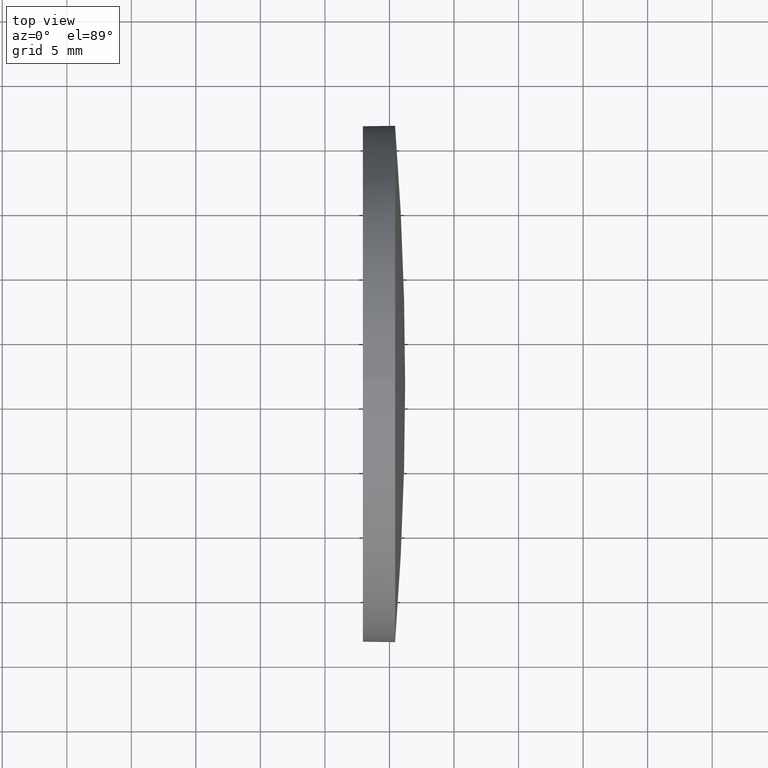
[diagram: clean part render]
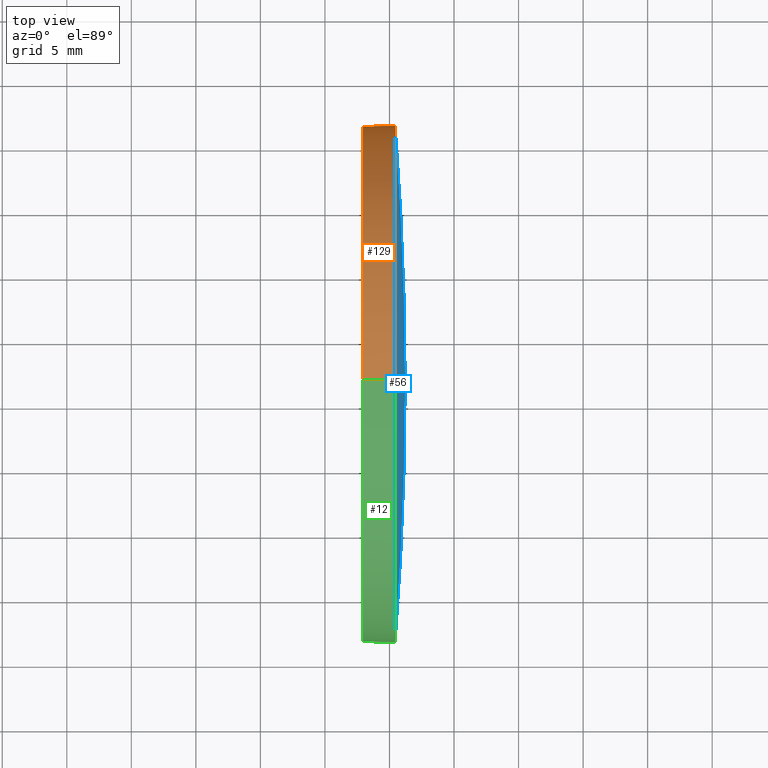
[diagram: same view with three faces highlighted in distinct colors, each labeled with its STEP entity id]
A machine part, top view with three faces highlighted in distinct colors.
Their STEP definitions:

[orange] entity #129 — the highlighted cylindrical surface (partial cylindrical patch) has radius 20 mm, axis along (-1, -0, -0).
#4 = EDGE_CURVE ( 'NONE', #172, #104, #97, .T. ) ;
#5 = VERTEX_POINT ( 'NONE', #10 ) ;
#8 = VECTOR ( 'NONE', #120, 1000.000000000000000 ) ;
#10 = CARTESIAN_POINT ( 'NONE',  ( 1332.934272124736000, 411.5874298332859700, -19.99999999999996100 ) ) ;
#11 = EDGE_CURVE ( 'NONE', #135, #5, #179, .T. ) ;
#17 = CARTESIAN_POINT ( 'NONE',  ( 1328.239728944158700, 411.5874298332859700, 0.0000000000000000000 ) ) ;
#19 = CARTESIAN_POINT ( 'NONE',  ( 1335.434272124735800, 411.5874298332859700, 19.99999999999996100 ) ) ;
#20 = DIRECTION ( 'NONE',  ( 0.0000000000000000000, 0.0000000000000000000, 1.000000000000000000 ) ) ;
#23 = CARTESIAN_POINT ( 'NONE',  ( 1335.434272124735800, 431.5874298332856300, 0.0000000000000000000 ) ) ;
#33 = DIRECTION ( 'NONE',  ( 0.0000000000000000000, 0.0000000000000000000, 1.000000000000000000 ) ) ;
#36 = EDGE_LOOP ( 'NONE', ( #166, #164, #53, #50, #71 ) ) ;
#38 = CIRCLE ( 'NONE', #115, 19.99999999999996100 ) ;
#41 = LINE ( 'NONE', #171, #8 ) ;
#42 = AXIS2_PLACEMENT_3D ( 'NONE', #125, #54, #52 ) ;
#49 = CARTESIAN_POINT ( 'NONE',  ( 1328.239728944158700, 411.5874298332859700, -19.99999999999996100 ) ) ;
#50 = ORIENTED_EDGE ( 'NONE', *, *, #108, .F. ) ;
#52 = DIRECTION ( 'NONE',  ( 0.0000000000000000000, 0.0000000000000000000, 1.000000000000000000 ) ) ;
#53 = ORIENTED_EDGE ( 'NONE', *, *, #148, .F. ) ;
#54 = DIRECTION ( 'NONE',  ( -1.000000000000000000, -0.0000000000000000000, -0.0000000000000000000 ) ) ;
#57 = DIRECTION ( 'NONE',  ( -1.000000000000000000, -0.0000000000000000000, -0.0000000000000000000 ) ) ;
#62 = DIRECTION ( 'NONE',  ( -1.000000000000000000, -0.0000000000000000000, -0.0000000000000000000 ) ) ;
#69 = FACE_OUTER_BOUND ( 'NONE', #36, .T. ) ;
#71 = ORIENTED_EDGE ( 'NONE', *, *, #4, .T. ) ;
#77 = DIRECTION ( 'NONE',  ( -1.000000000000000000, -0.0000000000000000000, -0.0000000000000000000 ) ) ;
#80 = CIRCLE ( 'NONE', #42, 19.99999999999996100 ) ;
#86 = EDGE_CURVE ( 'NONE', #104, #135, #80, .T. ) ;
#89 = CARTESIAN_POINT ( 'NONE',  ( 1332.934272124736000, 411.5874298332859700, 0.0000000000000000000 ) ) ;
#92 = DIRECTION ( 'NONE',  ( -1.000000000000000000, -0.0000000000000000000, -0.0000000000000000000 ) ) ;
#97 = CIRCLE ( 'NONE', #139, 19.99999999999996100 ) ;
#104 = VERTEX_POINT ( 'NONE', #23 ) ;
#108 = EDGE_CURVE ( 'NONE', #172, #161, #41, .T. ) ;
#111 = CYLINDRICAL_SURFACE ( 'NONE', #167, 19.99999999999996100 ) ;
#115 = AXIS2_PLACEMENT_3D ( 'NONE', #89, #77, #33 ) ;
#120 = DIRECTION ( 'NONE',  ( -1.000000000000000000, -0.0000000000000000000, -0.0000000000000000000 ) ) ;
#125 = CARTESIAN_POINT ( 'NONE',  ( 1335.434272124735800, 411.5874298332859700, 0.0000000000000000000 ) ) ;
#127 = DIRECTION ( 'NONE',  ( 0.0000000000000000000, 0.0000000000000000000, 1.000000000000000000 ) ) ;
#129 = ADVANCED_FACE ( 'NONE', ( #69 ), #111, .T. ) ;
#135 = VERTEX_POINT ( 'NONE', #154 ) ;
#139 = AXIS2_PLACEMENT_3D ( 'NONE', #186, #92, #127 ) ;
#148 = EDGE_CURVE ( 'NONE', #161, #5, #38, .T. ) ;
#154 = CARTESIAN_POINT ( 'NONE',  ( 1335.434272124735800, 411.5874298332859700, -19.99999999999996100 ) ) ;
#161 = VERTEX_POINT ( 'NONE', #168 ) ;
#164 = ORIENTED_EDGE ( 'NONE', *, *, #11, .T. ) ;
#166 = ORIENTED_EDGE ( 'NONE', *, *, #86, .T. ) ;
#167 = AXIS2_PLACEMENT_3D ( 'NONE', #17, #62, #20 ) ;
#168 = CARTESIAN_POINT ( 'NONE',  ( 1332.934272124736000, 411.5874298332859700, 19.99999999999996100 ) ) ;
#170 = VECTOR ( 'NONE', #57, 1000.000000000000000 ) ;
#171 = CARTESIAN_POINT ( 'NONE',  ( 1328.239728944158700, 411.5874298332859700, 19.99999999999996100 ) ) ;
#172 = VERTEX_POINT ( 'NONE', #19 ) ;
#179 = LINE ( 'NONE', #49, #170 ) ;
#186 = CARTESIAN_POINT ( 'NONE',  ( 1335.434272124735800, 411.5874298332859700, 0.0000000000000000000 ) ) ;

[blue] entity #56 — the highlighted spherical surface has radius 256.8 mm.
#4 = EDGE_CURVE ( 'NONE', #172, #104, #97, .T. ) ;
#14 = DIRECTION ( 'NONE',  ( 0.0000000000000000000, 0.0000000000000000000, 1.000000000000000000 ) ) ;
#19 = CARTESIAN_POINT ( 'NONE',  ( 1335.434272124735800, 411.5874298332859700, 19.99999999999996100 ) ) ;
#23 = CARTESIAN_POINT ( 'NONE',  ( 1335.434272124735800, 431.5874298332856300, 0.0000000000000000000 ) ) ;
#26 = ORIENTED_EDGE ( 'NONE', *, *, #55, .F. ) ;
#30 = ORIENTED_EDGE ( 'NONE', *, *, #160, .T. ) ;
#31 = DIRECTION ( 'NONE',  ( 0.0000000000000000000, 1.000000000000000000, 1.224646799147353200E-016 ) ) ;
#37 = DIRECTION ( 'NONE',  ( 0.0000000000000000000, 1.000000000000000000, 0.0000000000000000000 ) ) ;
#39 = CARTESIAN_POINT ( 'NONE',  ( 1335.434272124735800, 411.5874298332859700, 0.0000000000000000000 ) ) ;
#55 = EDGE_CURVE ( 'NONE', #177, #172, #59, .T. ) ;
#56 = ADVANCED_FACE ( 'NONE', ( #61 ), #88, .T. ) ;
#59 = CIRCLE ( 'NONE', #158, 19.99999999999996100 ) ;
#60 = VERTEX_POINT ( 'NONE', #109 ) ;
#61 = FACE_OUTER_BOUND ( 'NONE', #143, .T. ) ;
#63 = CARTESIAN_POINT ( 'NONE',  ( 1079.414015714479800, 411.5874298332847200, 0.0000000000000000000 ) ) ;
#66 = DIRECTION ( 'NONE',  ( -0.0000000000000000000, 0.0000000000000000000, -1.000000000000000000 ) ) ;
#68 = ORIENTED_EDGE ( 'NONE', *, *, #117, .F. ) ;
#76 = AXIS2_PLACEMENT_3D ( 'NONE', #63, #119, #182 ) ;
#79 = CARTESIAN_POINT ( 'NONE',  ( 1335.434272124735800, 391.5874298332850600, -2.449293598294665500E-015 ) ) ;
#88 = SPHERICAL_SURFACE ( 'NONE', #116, 256.8002564102561100 ) ;
#92 = DIRECTION ( 'NONE',  ( -1.000000000000000000, -0.0000000000000000000, -0.0000000000000000000 ) ) ;
#97 = CIRCLE ( 'NONE', #139, 19.99999999999996100 ) ;
#104 = VERTEX_POINT ( 'NONE', #23 ) ;
#109 = CARTESIAN_POINT ( 'NONE',  ( 1336.214272124735800, 411.5874298332847200, 0.0000000000000000000 ) ) ;
#114 = DIRECTION ( 'NONE',  ( -1.000000000000000000, -0.0000000000000000000, -0.0000000000000000000 ) ) ;
#116 = AXIS2_PLACEMENT_3D ( 'NONE', #130, #66, #37 ) ;
#117 = EDGE_CURVE ( 'NONE', #60, #177, #157, .T. ) ;
#119 = DIRECTION ( 'NONE',  ( -0.0000000000000000000, 0.0000000000000000000, 1.000000000000000000 ) ) ;
#121 = DIRECTION ( 'NONE',  ( 0.0000000000000000000, 1.224646799147353200E-016, -1.000000000000000000 ) ) ;
#127 = DIRECTION ( 'NONE',  ( 0.0000000000000000000, 0.0000000000000000000, 1.000000000000000000 ) ) ;
#130 = CARTESIAN_POINT ( 'NONE',  ( 1079.414015714479800, 411.5874298332847200, 0.0000000000000000000 ) ) ;
#139 = AXIS2_PLACEMENT_3D ( 'NONE', #186, #92, #127 ) ;
#143 = EDGE_LOOP ( 'NONE', ( #68, #30, #146, #26 ) ) ;
#145 = AXIS2_PLACEMENT_3D ( 'NONE', #165, #121, #31 ) ;
#146 = ORIENTED_EDGE ( 'NONE', *, *, #4, .F. ) ;
#153 = CIRCLE ( 'NONE', #76, 256.8002564102560500 ) ;
#157 = CIRCLE ( 'NONE', #145, 256.8002564102561100 ) ;
#158 = AXIS2_PLACEMENT_3D ( 'NONE', #39, #114, #14 ) ;
#160 = EDGE_CURVE ( 'NONE', #60, #104, #153, .T. ) ;
#165 = CARTESIAN_POINT ( 'NONE',  ( 1079.414015714479800, 411.5874298332847200, 0.0000000000000000000 ) ) ;
#172 = VERTEX_POINT ( 'NONE', #19 ) ;
#177 = VERTEX_POINT ( 'NONE', #79 ) ;
#182 = DIRECTION ( 'NONE',  ( 1.000000000000000000, 0.0000000000000000000, 0.0000000000000000000 ) ) ;
#186 = CARTESIAN_POINT ( 'NONE',  ( 1335.434272124735800, 411.5874298332859700, 0.0000000000000000000 ) ) ;

[green] entity #12 — the highlighted cylindrical surface (partial cylindrical patch) has radius 20 mm, axis along (-1, -0, -0).
#2 = ORIENTED_EDGE ( 'NONE', *, *, #169, .T. ) ;
#5 = VERTEX_POINT ( 'NONE', #10 ) ;
#8 = VECTOR ( 'NONE', #120, 1000.000000000000000 ) ;
#9 = DIRECTION ( 'NONE',  ( -1.000000000000000000, -0.0000000000000000000, -0.0000000000000000000 ) ) ;
#10 = CARTESIAN_POINT ( 'NONE',  ( 1332.934272124736000, 411.5874298332859700, -19.99999999999996100 ) ) ;
#11 = EDGE_CURVE ( 'NONE', #135, #5, #179, .T. ) ;
#12 = ADVANCED_FACE ( 'NONE', ( #132 ), #21, .T. ) ;
#14 = DIRECTION ( 'NONE',  ( 0.0000000000000000000, 0.0000000000000000000, 1.000000000000000000 ) ) ;
#19 = CARTESIAN_POINT ( 'NONE',  ( 1335.434272124735800, 411.5874298332859700, 19.99999999999996100 ) ) ;
#21 = CYLINDRICAL_SURFACE ( 'NONE', #32, 19.99999999999996100 ) ;
#24 = ORIENTED_EDGE ( 'NONE', *, *, #108, .T. ) ;
#27 = CIRCLE ( 'NONE', #91, 19.99999999999996100 ) ;
#29 = CARTESIAN_POINT ( 'NONE',  ( 1332.934272124736000, 411.5874298332859700, 0.0000000000000000000 ) ) ;
#32 = AXIS2_PLACEMENT_3D ( 'NONE', #144, #51, #113 ) ;
#39 = CARTESIAN_POINT ( 'NONE',  ( 1335.434272124735800, 411.5874298332859700, 0.0000000000000000000 ) ) ;
#41 = LINE ( 'NONE', #171, #8 ) ;
#49 = CARTESIAN_POINT ( 'NONE',  ( 1328.239728944158700, 411.5874298332859700, -19.99999999999996100 ) ) ;
#51 = DIRECTION ( 'NONE',  ( -1.000000000000000000, -0.0000000000000000000, -0.0000000000000000000 ) ) ;
#55 = EDGE_CURVE ( 'NONE', #177, #172, #59, .T. ) ;
#57 = DIRECTION ( 'NONE',  ( -1.000000000000000000, -0.0000000000000000000, -0.0000000000000000000 ) ) ;
#59 = CIRCLE ( 'NONE', #158, 19.99999999999996100 ) ;
#72 = AXIS2_PLACEMENT_3D ( 'NONE', #184, #9, #152 ) ;
#74 = DIRECTION ( 'NONE',  ( -1.000000000000000000, -0.0000000000000000000, -0.0000000000000000000 ) ) ;
#79 = CARTESIAN_POINT ( 'NONE',  ( 1335.434272124735800, 391.5874298332850600, -2.449293598294665500E-015 ) ) ;
#90 = ORIENTED_EDGE ( 'NONE', *, *, #11, .F. ) ;
#91 = AXIS2_PLACEMENT_3D ( 'NONE', #29, #74, #140 ) ;
#96 = EDGE_CURVE ( 'NONE', #5, #161, #27, .T. ) ;
#108 = EDGE_CURVE ( 'NONE', #172, #161, #41, .T. ) ;
#113 = DIRECTION ( 'NONE',  ( 0.0000000000000000000, 0.0000000000000000000, 1.000000000000000000 ) ) ;
#114 = DIRECTION ( 'NONE',  ( -1.000000000000000000, -0.0000000000000000000, -0.0000000000000000000 ) ) ;
#120 = DIRECTION ( 'NONE',  ( -1.000000000000000000, -0.0000000000000000000, -0.0000000000000000000 ) ) ;
#128 = ORIENTED_EDGE ( 'NONE', *, *, #96, .F. ) ;
#132 = FACE_OUTER_BOUND ( 'NONE', #133, .T. ) ;
#133 = EDGE_LOOP ( 'NONE', ( #90, #2, #151, #24, #128 ) ) ;
#135 = VERTEX_POINT ( 'NONE', #154 ) ;
#140 = DIRECTION ( 'NONE',  ( 0.0000000000000000000, 0.0000000000000000000, 1.000000000000000000 ) ) ;
#144 = CARTESIAN_POINT ( 'NONE',  ( 1328.239728944158700, 411.5874298332859700, 0.0000000000000000000 ) ) ;
#151 = ORIENTED_EDGE ( 'NONE', *, *, #55, .T. ) ;
#152 = DIRECTION ( 'NONE',  ( 0.0000000000000000000, 0.0000000000000000000, 1.000000000000000000 ) ) ;
#154 = CARTESIAN_POINT ( 'NONE',  ( 1335.434272124735800, 411.5874298332859700, -19.99999999999996100 ) ) ;
#158 = AXIS2_PLACEMENT_3D ( 'NONE', #39, #114, #14 ) ;
#161 = VERTEX_POINT ( 'NONE', #168 ) ;
#168 = CARTESIAN_POINT ( 'NONE',  ( 1332.934272124736000, 411.5874298332859700, 19.99999999999996100 ) ) ;
#169 = EDGE_CURVE ( 'NONE', #135, #177, #176, .T. ) ;
#170 = VECTOR ( 'NONE', #57, 1000.000000000000000 ) ;
#171 = CARTESIAN_POINT ( 'NONE',  ( 1328.239728944158700, 411.5874298332859700, 19.99999999999996100 ) ) ;
#172 = VERTEX_POINT ( 'NONE', #19 ) ;
#176 = CIRCLE ( 'NONE', #72, 19.99999999999996100 ) ;
#177 = VERTEX_POINT ( 'NONE', #79 ) ;
#179 = LINE ( 'NONE', #49, #170 ) ;
#184 = CARTESIAN_POINT ( 'NONE',  ( 1335.434272124735800, 411.5874298332859700, 0.0000000000000000000 ) ) ;